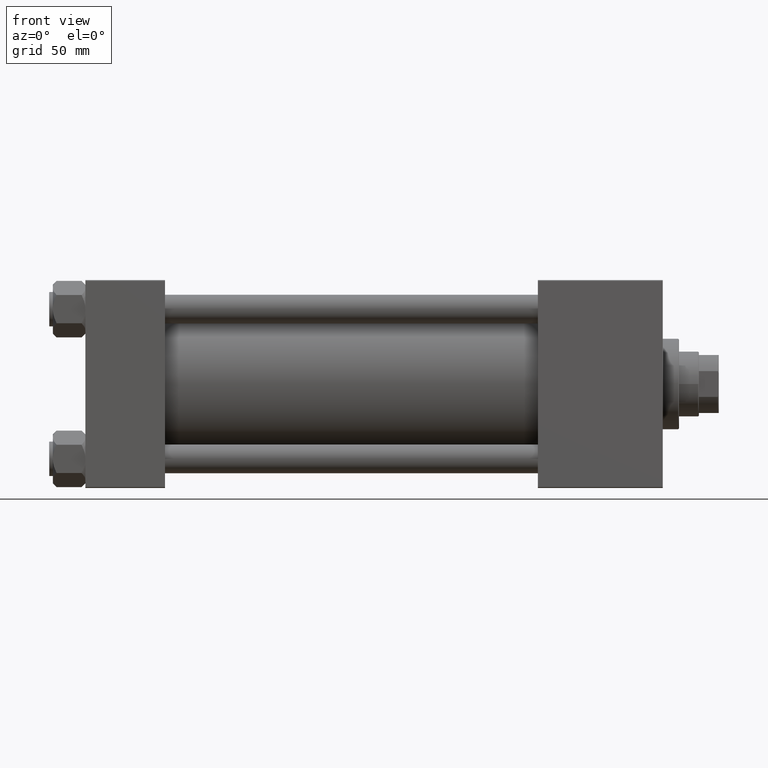
[diagram: clean part render]
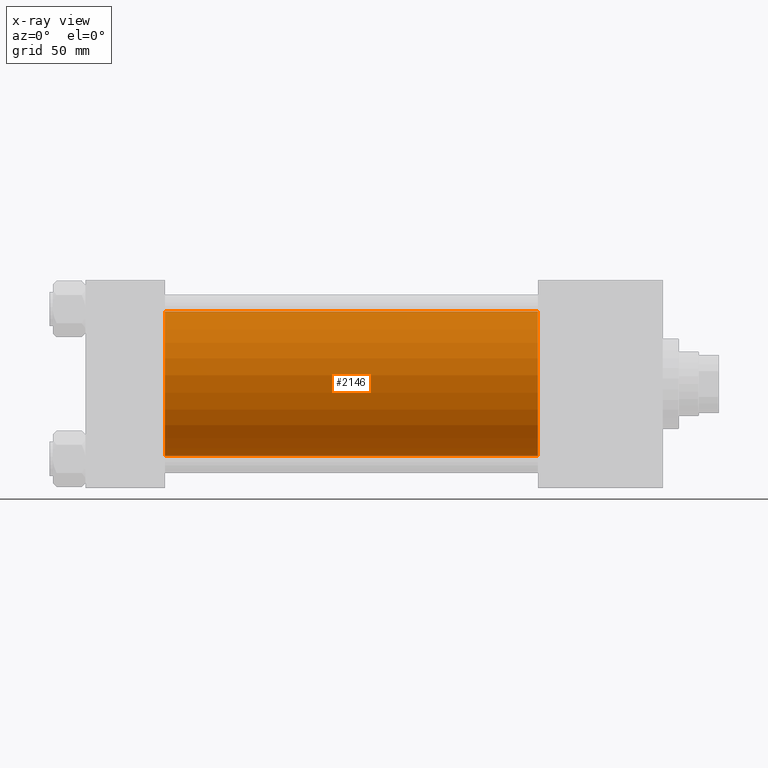
[diagram: x-ray — body ghosted, one internal face saturated and labeled with its STEP entity id]
A machine part, front view, then the same camera in x-ray: the body is ghosted and one INTERNAL B-rep face — a face not visible from any outside direction — is saturated and labeled: STEP entity #2146.
In plain terms, the highlighted cylindrical surface (partial cylindrical patch) has radius 40 mm, axis along (-1, -0, -0).
Its self-contained STEP definition (entity closure, byte-faithful):
#2146 = ADVANCED_FACE ( 'NONE', ( #27633 ), #23520, .F. ) ;
#2387 = CIRCLE ( 'NONE', #28532, 40.00000000000000000 ) ;
#4607 = CARTESIAN_POINT ( 'NONE',  ( 250.0000000000000000, -2.602085213965210642E-15, 40.00000000000000000 ) ) ;
#5539 = CARTESIAN_POINT ( 'NONE',  ( 250.0000000000000000, 2.296501982624201990E-15, -40.00000000000000000 ) ) ;
#8112 = DIRECTION ( 'NONE',  ( 0.000000000000000000, 0.000000000000000000, 1.000000000000000000 ) ) ;
#9097 = VECTOR ( 'NONE', #25781, 1000.000000000000000 ) ;
#10157 = VERTEX_POINT ( 'NONE', #25422 ) ;
#11609 = CARTESIAN_POINT ( 'NONE',  ( 250.0000000000000000, -2.602085213965210642E-15, 40.00000000000000000 ) ) ;
#12245 = ORIENTED_EDGE ( 'NONE', *, *, #29746, .T. ) ;
#12492 = CARTESIAN_POINT ( 'NONE',  ( 44.00000000000000000, -2.602085213965210642E-15, 0.000000000000000000 ) ) ;
#14028 = ORIENTED_EDGE ( 'NONE', *, *, #23852, .F. ) ;
#15455 = LINE ( 'NONE', #11609, #43229 ) ;
#20182 = AXIS2_PLACEMENT_3D ( 'NONE', #12492, #28163, #43820 ) ;
#20687 = CARTESIAN_POINT ( 'NONE',  ( 250.0000000000000000, -2.602085213965210642E-15, 0.000000000000000000 ) ) ;
#23520 = CYLINDRICAL_SURFACE ( 'NONE', #27017, 40.00000000000000000 ) ;
#23852 = EDGE_CURVE ( 'NONE', #25703, #10157, #15455, .T. ) ;
#25040 = LINE ( 'NONE', #40718, #9097 ) ;
#25422 = CARTESIAN_POINT ( 'NONE',  ( 44.00000000000000000, -2.602085213965210642E-15, 40.00000000000000000 ) ) ;
#25703 = VERTEX_POINT ( 'NONE', #4607 ) ;
#25781 = DIRECTION ( 'NONE',  ( -1.000000000000000000, -0.000000000000000000, -0.000000000000000000 ) ) ;
#27017 = AXIS2_PLACEMENT_3D ( 'NONE', #20687, #36350, #8112 ) ;
#27633 = FACE_OUTER_BOUND ( 'NONE', #42402, .T. ) ;
#28163 = DIRECTION ( 'NONE',  ( 1.000000000000000000, 0.000000000000000000, 0.000000000000000000 ) ) ;
#28532 = AXIS2_PLACEMENT_3D ( 'NONE', #38969, #46439, #35122 ) ;
#29746 = EDGE_CURVE ( 'NONE', #25703, #49664, #2387, .T. ) ;
#30434 = CARTESIAN_POINT ( 'NONE',  ( 44.00000000000000000, 2.296501982624201990E-15, -40.00000000000000000 ) ) ;
#31697 = CIRCLE ( 'NONE', #20182, 40.00000000000000000 ) ;
#34302 = EDGE_CURVE ( 'NONE', #49664, #48318, #25040, .T. ) ;
#35122 = DIRECTION ( 'NONE',  ( 0.000000000000000000, 0.000000000000000000, -1.000000000000000000 ) ) ;
#36350 = DIRECTION ( 'NONE',  ( -1.000000000000000000, -0.000000000000000000, -0.000000000000000000 ) ) ;
#37576 = ORIENTED_EDGE ( 'NONE', *, *, #42534, .F. ) ;
#38969 = CARTESIAN_POINT ( 'NONE',  ( 250.0000000000000000, -2.602085213965210642E-15, 0.000000000000000000 ) ) ;
#40718 = CARTESIAN_POINT ( 'NONE',  ( 250.0000000000000000, 2.296501982624201990E-15, -40.00000000000000000 ) ) ;
#42402 = EDGE_LOOP ( 'NONE', ( #12245, #44019, #37576, #14028 ) ) ;
#42534 = EDGE_CURVE ( 'NONE', #10157, #48318, #31697, .T. ) ;
#43229 = VECTOR ( 'NONE', #43695, 1000.000000000000000 ) ;
#43695 = DIRECTION ( 'NONE',  ( -1.000000000000000000, -0.000000000000000000, -0.000000000000000000 ) ) ;
#43820 = DIRECTION ( 'NONE',  ( 0.000000000000000000, 0.000000000000000000, -1.000000000000000000 ) ) ;
#44019 = ORIENTED_EDGE ( 'NONE', *, *, #34302, .T. ) ;
#46439 = DIRECTION ( 'NONE',  ( 1.000000000000000000, 0.000000000000000000, 0.000000000000000000 ) ) ;
#48318 = VERTEX_POINT ( 'NONE', #30434 ) ;
#49664 = VERTEX_POINT ( 'NONE', #5539 ) ;